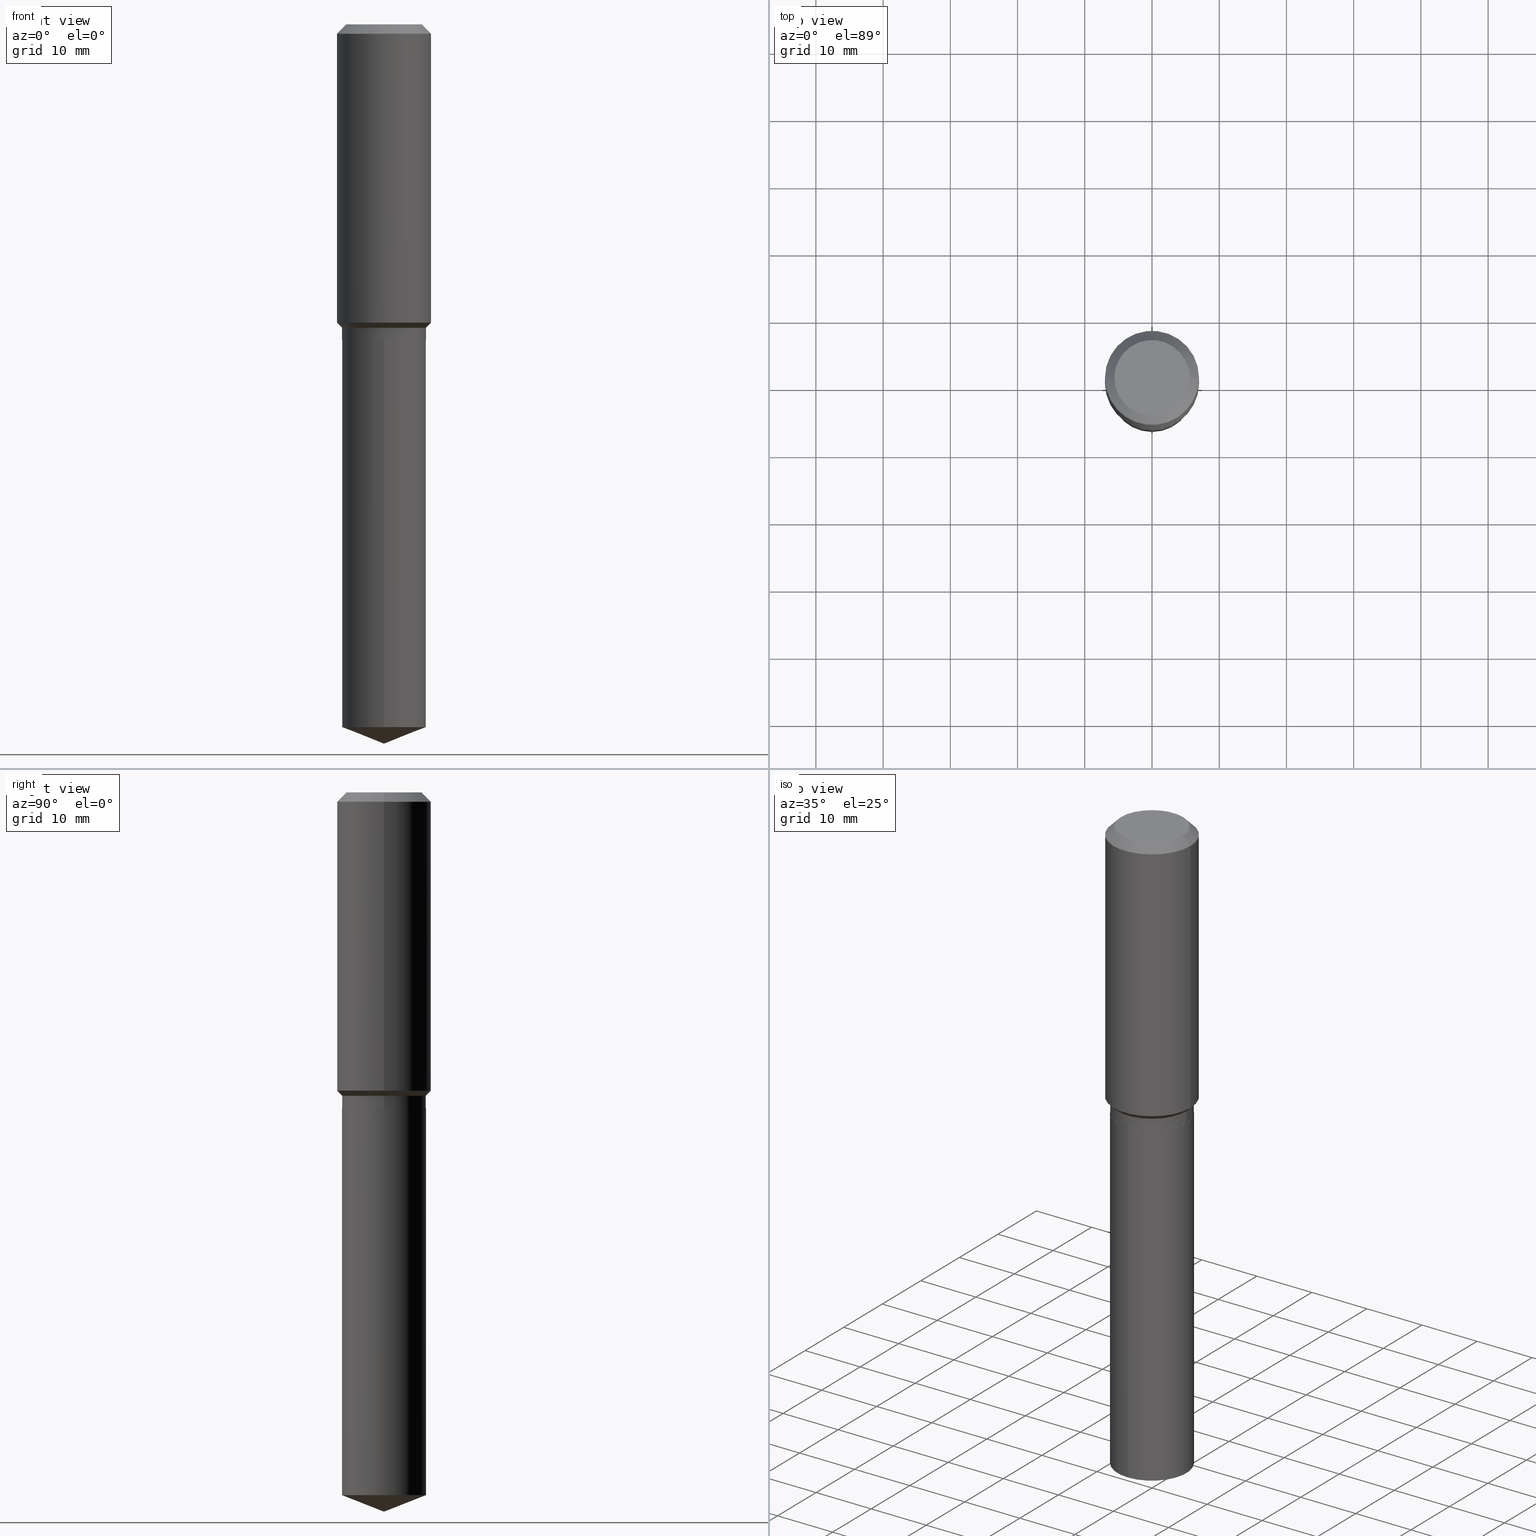
[diagram: canonical four-view strip — front | top / right | iso, engineering-drawing reading convention]
A machine part, canonical four-view strip (front | top / right | iso — engineering-drawing reading convention). The complete STEP part file that produces these views, byte-faithful:
ISO-10303-21;
HEADER;
FILE_DESCRIPTION (( 'STEP AP203' ),
    '1' );
FILE_NAME ('66491.STEP',
    '2024-04-24T23:40:13',
    ( '' ),
    ( '' ),
    'SwSTEP 2.0',
    'SolidWorks 2023',
    '' );
FILE_SCHEMA (( 'CONFIG_CONTROL_DESIGN' ));
ENDSEC;

DATA;
#1 = COORDINATED_UNIVERSAL_TIME_OFFSET ( 5, 0, .BEHIND. ) ;
#2 = DIRECTION ( 'NONE',  ( -2.445468806185136597E-29, 3.491481338843145583E-15, 1.000000000000000000 ) ) ;
#3 = APPROVAL ( #296, 'UNSPECIFIED' ) ;
#4 = ORIENTED_EDGE ( 'NONE', *, *, #477, .F. ) ;
#5 = CARTESIAN_POINT ( 'NONE',  ( -0.2204800000000000093, 1.635828836874783961E-15, 3.860086710901350968E-18 ) ) ;
#6 = DIRECTION ( 'NONE',  ( 1.000000000000000000, -6.982962677686266711E-15, 4.876132675269083677E-29 ) ) ;
#7 = VECTOR ( 'NONE', #158, 39.37007874015748143 ) ;
#8 = AXIS2_PLACEMENT_3D ( 'NONE', #70, #365, #288 ) ;
#9 = CYLINDRICAL_SURFACE ( 'NONE', #278, 0.2460499999999999354 ) ;
#10 = EDGE_CURVE ( 'NONE', #259, #488, #155, .T. ) ;
#11 = DIRECTION ( 'NONE',  ( 2.445468806185136597E-29, -3.491481338843145583E-15, -1.000000000000000000 ) ) ;
#12 = PLANE ( 'NONE',  #127 ) ;
#13 = EDGE_LOOP ( 'NONE', ( #468, #26, #247, #251 ) ) ;
#14 = CONICAL_SURFACE ( 'NONE', #431, 99.94676754583886691, 1.195550537616115738 ) ;
#15 = CARTESIAN_POINT ( 'NONE',  ( 0.2756000000000001227, -1.924504513970336137E-15, 1.343874319409360548E-29 ) ) ;
#16 = AXIS2_PLACEMENT_3D ( 'NONE', #27, #25, #323 ) ;
#17 = AXIS2_PLACEMENT_3D ( 'NONE', #133, #281, #439 ) ;
#18 = LOCAL_TIME ( 19, 40, 13.00000000000000000, #114 ) ;
#19 = DIRECTION ( 'NONE',  ( -2.445468806185136597E-29, 3.491481338843145583E-15, 1.000000000000000000 ) ) ;
#20 = DIRECTION ( 'NONE',  ( -2.445468806185136597E-29, 3.491481338843145583E-15, 1.000000000000000000 ) ) ;
#21 = EDGE_CURVE ( 'NONE', #286, #69, #38, .T. ) ;
#22 = DIRECTION ( 'NONE',  ( 1.000000000000000000, -6.982962677686269077E-15, 0.000000000000000000 ) ) ;
#23 = ORIENTED_EDGE ( 'NONE', *, *, #297, .F. ) ;
#24 = AXIS2_PLACEMENT_3D ( 'NONE', #128, #358, #319 ) ;
#25 = DIRECTION ( 'NONE',  ( -2.445468806185136597E-29, 3.491481338843145583E-15, 1.000000000000000000 ) ) ;
#26 = ORIENTED_EDGE ( 'NONE', *, *, #317, .T. ) ;
#27 = CARTESIAN_POINT ( 'NONE',  ( 4.523872744561886834E-29, -6.458891328725938439E-15, -1.849900000000000988 ) ) ;
#28 = ORIENTED_EDGE ( 'NONE', *, *, #83, .T. ) ;
#29 = CARTESIAN_POINT ( 'NONE',  ( 4.525095478964979075E-29, -6.460637069395360731E-15, -1.850400000000001155 ) ) ;
#30 = ORIENTED_EDGE ( 'NONE', *, *, #75, .T. ) ;
#31 = ADVANCED_FACE ( 'NONE', ( #188 ), #337, .T. ) ;
#32 = DIRECTION ( 'NONE',  ( -2.445468806185136597E-29, 3.491481338843145583E-15, 1.000000000000000000 ) ) ;
#33 = ORIENTED_EDGE ( 'NONE', *, *, #472, .F. ) ;
#34 = APPROVAL_DATE_TIME ( #485, #271 ) ;
#35 = APPROVAL_ROLE ( '' ) ;
#36 = CARTESIAN_POINT ( 'NONE',  ( 1.030189482071347624E-28, -1.470805256900513277E-14, -4.212600000000000122 ) ) ;
#37 = MECHANICAL_CONTEXT ( 'NONE', #403, 'mechanical' ) ;
#38 = LINE ( 'NONE', #36, #345 ) ;
#39 = CIRCLE ( 'NONE', #311, 0.2460499999999999909 ) ;
#40 = CIRCLE ( 'NONE', #64, 0.2204800000000000093 ) ;
#41 = DIRECTION ( 'NONE',  ( -6.982962677686265922E-15, -1.000000000000000000, 3.498627837350042877E-15 ) ) ;
#42 = PERSON_AND_ORGANIZATION_ROLE ( 'creator' ) ;
#43 = CARTESIAN_POINT ( 'NONE',  ( 0.2756000000000000116, -2.083203699582869812E-15, -0.05512000000000035621 ) ) ;
#44 = CARTESIAN_POINT ( 'NONE',  ( 3.087548876169571807E-29, -8.519285624669787196E-15, -1.850400000000001155 ) ) ;
#45 = ADVANCED_FACE ( 'NONE', ( #377 ), #14, .T. ) ;
#46 = CIRCLE ( 'NONE', #17, 0.2756000000000001782 ) ;
#47 = LINE ( 'NONE', #163, #484 ) ;
#48 = APPROVAL_PERSON_ORGANIZATION ( #375, #271, #405 ) ;
#49 = EDGE_LOOP ( 'NONE', ( #394, #303 ) ) ;
#50 = CARTESIAN_POINT ( 'NONE',  ( 4.344619881068514536E-29, -6.202965746588733394E-15, -1.776600000000000401 ) ) ;
#51 = ORIENTED_EDGE ( 'NONE', *, *, #84, .F. ) ;
#52 = LINE ( 'NONE', #469, #54 ) ;
#53 = VERTEX_POINT ( 'NONE', #265 ) ;
#54 = VECTOR ( 'NONE', #347, 39.37007874015748143 ) ;
#55 = LINE ( 'NONE', #15, #262 ) ;
#56 = AXIS2_PLACEMENT_3D ( 'NONE', #139, #32, #398 ) ;
#57 = CC_DESIGN_APPROVAL ( #3, ( #216 ) ) ;
#58 = CC_DESIGN_PERSON_AND_ORGANIZATION_ASSIGNMENT ( #222, #451, ( #238 ) ) ;
#59 = CARTESIAN_POINT ( 'NONE',  ( -0.2460499999999999354, 1.748290401337726049E-15, -1.210303978957219254E-29 ) ) ;
#60 = LINE ( 'NONE', #177, #225 ) ;
#61 = ORIENTED_EDGE ( 'NONE', *, *, #292, .F. ) ;
#62 = CARTESIAN_POINT ( 'NONE',  ( 1.347942405969256063E-30, -1.924504513970354330E-16, -0.05512000000000035621 ) ) ;
#63 = ORIENTED_EDGE ( 'NONE', *, *, #184, .T. ) ;
#64 = AXIS2_PLACEMENT_3D ( 'NONE', #102, #411, #136 ) ;
#65 = CARTESIAN_POINT ( 'NONE',  ( 0.2756000000000001782, -8.024296986996253937E-15, -1.747050000000000214 ) ) ;
#66 = VERTEX_POINT ( 'NONE', #5 ) ;
#67 = ADVANCED_FACE ( 'NONE', ( #227 ), #344, .F. ) ;
#68 = DIRECTION ( 'NONE',  ( -2.445468806185136597E-29, 3.491481338843145583E-15, 1.000000000000000000 ) ) ;
#69 = VERTEX_POINT ( 'NONE', #387 ) ;
#70 = CARTESIAN_POINT ( 'NONE',  ( 4.525095478964977954E-29, -6.460637069395358365E-15, -1.850400000000000489 ) ) ;
#71 = ORIENTED_EDGE ( 'NONE', *, *, #386, .T. ) ;
#72 = CONICAL_SURFACE ( 'NONE', #326, 0.2455499999999999905, 0.7853981633972092480 ) ;
#73 =( NAMED_UNIT ( * ) SI_UNIT ( $, .STERADIAN. ) SOLID_ANGLE_UNIT ( ) );
#74 = ORIENTED_EDGE ( 'NONE', *, *, #374, .T. ) ;
#75 = EDGE_CURVE ( 'NONE', #452, #171, #140, .T. ) ;
#76 = DATE_AND_TIME ( #226, #354 ) ;
#77 = DIRECTION ( 'NONE',  ( 0.7071067811863784858, -2.468850131080486462E-15, 0.7071067811867165487 ) ) ;
#78 = LENGTH_MEASURE_WITH_UNIT ( LENGTH_MEASURE( 0.02539999999999999897 ), #414 );
#79 = CARTESIAN_POINT ( 'NONE',  ( 4.272356277845743309E-29, -6.099792473025918194E-15, -1.747050000000000214 ) ) ;
#80 = AXIS2_PLACEMENT_3D ( 'NONE', #233, #392, #307 ) ;
#81 = APPROVAL_STATUS ( 'not_yet_approved' ) ;
#82 = DIRECTION ( 'NONE',  ( 1.000000000000000000, -6.982962677686265922E-15, 4.876176775795935793E-29 ) ) ;
#83 = EDGE_CURVE ( 'NONE', #69, #162, #298, .T. ) ;
#84 = EDGE_CURVE ( 'NONE', #66, #242, #202, .T. ) ;
#85 = DIRECTION ( 'NONE',  ( -2.445689454442209715E-29, 3.491165357980497875E-15, 1.000000000000000000 ) ) ;
#86 = CARTESIAN_POINT ( 'NONE',  ( -0.2455499999999999905, -4.713250154562323197E-15, -1.850400000000001155 ) ) ;
#87 = CARTESIAN_POINT ( 'NONE',  ( 4.344619881068514536E-29, -6.202965746588733394E-15, -1.776600000000000401 ) ) ;
#88 = DIRECTION ( 'NONE',  ( -0.7071067811865479058, 7.493145998870355738E-15, 0.7071067811865471286 ) ) ;
#89 = CARTESIAN_POINT ( 'NONE',  ( 4.525095478964979075E-29, -6.460637069395360731E-15, -1.850400000000001155 ) ) ;
#90 = PRODUCT_DEFINITION_SHAPE ( 'NONE', 'NONE',  #216 ) ;
#91 = DIRECTION ( 'NONE',  ( -2.445468806185136597E-29, 3.491481338843145583E-15, 1.000000000000000000 ) ) ;
#92 = CIRCLE ( 'NONE', #396, 0.2460499999999999909 ) ;
#93 = CARTESIAN_POINT ( 'NONE',  ( 4.523872744561886834E-29, -6.458891328725938439E-15, -1.849900000000000988 ) ) ;
#94 = EDGE_CURVE ( 'NONE', #162, #69, #39, .T. ) ;
#95 = VERTEX_POINT ( 'NONE', #421 ) ;
#96 = UNCERTAINTY_MEASURE_WITH_UNIT (LENGTH_MEASURE( 1.000000000000000082E-05 ), #110, 'distance_accuracy_value', 'NONE');
#97 = DIRECTION ( 'NONE',  ( 1.000000000000000000, -6.982962677686265133E-15, 0.000000000000000000 ) ) ;
#98 = VERTEX_POINT ( 'NONE', #415 ) ;
#99 = CARTESIAN_POINT ( 'NONE',  ( 4.525095478964978515E-29, -6.460637069395359943E-15, -1.850400000000000933 ) ) ;
#100 = ORIENTED_EDGE ( 'NONE', *, *, #384, .T. ) ;
#101 = COORDINATED_UNIVERSAL_TIME_OFFSET ( 5, 0, .BEHIND. ) ;
#102 = CARTESIAN_POINT ( 'NONE',  ( -9.439721640706190018E-47, 1.347742071746724849E-32, 3.860086710912454339E-18 ) ) ;
#103 = ORIENTED_EDGE ( 'NONE', *, *, #402, .F. ) ;
#104 = CARTESIAN_POINT ( 'NONE',  ( 0.2460499999999999354, -1.718157966844705344E-15, 1.199783295684589643E-29 ) ) ;
#105 = VERTEX_POINT ( 'NONE', #299 ) ;
#106 = ADVANCED_FACE ( 'NONE', ( #153 ), #253, .T. ) ;
#107 = CARTESIAN_POINT ( 'NONE',  ( 1.748290401337827023E-15, 0.2460499999999856136, -4.115678327474944886 ) ) ;
#108 = CLOSED_SHELL ( 'NONE', ( #280, #470, #448, #462, #31, #159, #228, #266, #284, #67, #138, #332 ) ) ;
#109 = AXIS2_PLACEMENT_3D ( 'NONE', #50, #19, #161 ) ;
#110 =( CONVERSION_BASED_UNIT ( 'INCH', #78 ) LENGTH_UNIT ( ) NAMED_UNIT ( #240 ) );
#111 = FACE_OUTER_BOUND ( 'NONE', #434, .T. ) ;
#112 = CARTESIAN_POINT ( 'NONE',  ( 0.000000000000000000, 0.000000000000000000, 0.000000000000000000 ) ) ;
#113 = CARTESIAN_POINT ( 'NONE',  ( 1.006526279584693269E-28, -1.436909829245988232E-14, -4.115678327474943998 ) ) ;
#114 = COORDINATED_UNIVERSAL_TIME_OFFSET ( 5, 0, .BEHIND. ) ;
#115 = DIRECTION ( 'NONE',  ( -6.982962677686265922E-15, -1.000000000000000000, 4.441126589984577246E-15 ) ) ;
#116 = CLOSED_SHELL ( 'NONE', ( #289, #45, #106, #364, #186 ) ) ;
#117 = VECTOR ( 'NONE', #348, 39.37007874015748143 ) ;
#118 = DIRECTION ( 'NONE',  ( -6.497071151882111159E-15, -0.9304175679820232414, 0.3665012267243005772 ) ) ;
#119 = CARTESIAN_POINT ( 'NONE',  ( 0.2756000000000000116, -2.116954965367370658E-15, -0.05512000000000035621 ) ) ;
#120 = CYLINDRICAL_SURFACE ( 'NONE', #287, 0.2460499999999999909 ) ;
#121 = VECTOR ( 'NONE', #206, 39.37007874015748143 ) ;
#122 = CARTESIAN_POINT ( 'NONE',  ( 1.030271139578325238E-28, -1.470688318702864405E-14, -4.212600000000000122 ) ) ;
#123 = MANIFOLD_SOLID_BREP ( 'Body-Move/Copy2[2]', #108 ) ;
#124 = CARTESIAN_POINT ( 'NONE',  ( 0.2204800000000000093, -1.797903149065768707E-15, 3.860086710924123164E-18 ) ) ;
#125 = ORIENTED_EDGE ( 'NONE', *, *, #472, .T. ) ;
#126 = FACE_OUTER_BOUND ( 'NONE', #49, .T. ) ;
#127 = AXIS2_PLACEMENT_3D ( 'NONE', #393, #312, #424 ) ;
#128 = CARTESIAN_POINT ( 'NONE',  ( 1.347942405969256063E-30, -1.924504513970354330E-16, -0.05512000000000035621 ) ) ;
#129 = CIRCLE ( 'NONE', #231, 0.2455499999999999905 ) ;
#130 = EDGE_LOOP ( 'NONE', ( #310, #366, #283 ) ) ;
#131 = CC_DESIGN_SECURITY_CLASSIFICATION ( #264, ( #238 ) ) ;
#132 = EDGE_CURVE ( 'NONE', #242, #322, #455, .T. ) ;
#133 = CARTESIAN_POINT ( 'NONE',  ( 4.272356277845743309E-29, -6.099792473025918194E-15, -1.747050000000000214 ) ) ;
#134 = ORIENTED_EDGE ( 'NONE', *, *, #276, .F. ) ;
#135 = CC_DESIGN_DATE_AND_TIME_ASSIGNMENT ( #400, #450, ( #264 ) ) ;
#136 = DIRECTION ( 'NONE',  ( 1.000000000000000000, -6.982962677686266711E-15, 4.876132675269083677E-29 ) ) ;
#137 = ORIENTED_EDGE ( 'NONE', *, *, #317, .F. ) ;
#138 = ADVANCED_FACE ( 'NONE', ( #156 ), #229, .F. ) ;
#139 = CARTESIAN_POINT ( 'NONE',  ( 0.000000000000000000, 0.000000000000000000, 0.000000000000000000 ) ) ;
#140 = CIRCLE ( 'NONE', #336, 0.2756000000000001782 ) ;
#141 = ORIENTED_EDGE ( 'NONE', *, *, #465, .F. ) ;
#142 = CIRCLE ( 'NONE', #381, 0.2756000000000000116 ) ;
#143 = DIRECTION ( 'NONE',  ( -2.445468806185136597E-29, 3.491481338843145583E-15, 1.000000000000000000 ) ) ;
#144 = ORIENTED_EDGE ( 'NONE', *, *, #343, .F. ) ;
#145 = APPROVAL ( #81, 'UNSPECIFIED' ) ;
#146 = COORDINATED_UNIVERSAL_TIME_OFFSET ( 5, 0, .BEHIND. ) ;
#147 = PERSON_AND_ORGANIZATION ( #349, #246 ) ;
#148 = ORIENTED_EDGE ( 'NONE', *, *, #21, .F. ) ;
#149 = DIRECTION ( 'NONE',  ( 1.000000000000000000, -6.982962677686265922E-15, 0.000000000000000000 ) ) ;
#150 = AXIS2_PLACEMENT_3D ( 'NONE', #224, #2, #6 ) ;
#151 =( GEOMETRIC_REPRESENTATION_CONTEXT ( 3 ) GLOBAL_UNCERTAINTY_ASSIGNED_CONTEXT ( ( #96 ) ) GLOBAL_UNIT_ASSIGNED_CONTEXT ( ( #110, #300, #73 ) ) REPRESENTATION_CONTEXT ( 'NONE', 'WORKASPACE' ) );
#152 = PERSON_AND_ORGANIZATION_ROLE ( 'design_owner' ) ;
#153 = FACE_OUTER_BOUND ( 'NONE', #130, .T. ) ;
#154 = PERSON_AND_ORGANIZATION ( #349, #246 ) ;
#155 = LINE ( 'NONE', #340, #453 ) ;
#156 = FACE_OUTER_BOUND ( 'NONE', #294, .T. ) ;
#157 = VECTOR ( 'NONE', #480, 39.37007874015748143 ) ;
#158 = DIRECTION ( 'NONE',  ( 0.7071067811865453523, -7.319954787623248157E-15, -0.7071067811865496822 ) ) ;
#159 = ADVANCED_FACE ( 'NONE', ( #111 ), #9, .T. ) ;
#160 = DIRECTION ( 'NONE',  ( -6.982962677686265922E-15, -1.000000000000000000, 3.330844942488433132E-15 ) ) ;
#161 = DIRECTION ( 'NONE',  ( 1.000000000000000000, -6.982962677686265133E-15, 0.000000000000000000 ) ) ;
#162 = VERTEX_POINT ( 'NONE', #107 ) ;
#163 = CARTESIAN_POINT ( 'NONE',  ( -0.2460499999999999354, -4.454675345251007740E-15, -1.776600000000000401 ) ) ;
#164 = ORIENTED_EDGE ( 'NONE', *, *, #173, .F. ) ;
#165 = EDGE_CURVE ( 'NONE', #98, #171, #47, .T. ) ;
#166 = FACE_OUTER_BOUND ( 'NONE', #175, .T. ) ;
#167 = APPLICATION_CONTEXT ( 'configuration controlled 3d designs of mechanical parts and assemblies' ) ;
#168 = DIRECTION ( 'NONE',  ( 1.000000000000000000, -6.982962677686269077E-15, 0.000000000000000000 ) ) ;
#169 = FACE_OUTER_BOUND ( 'NONE', #373, .T. ) ;
#170 = CONICAL_SURFACE ( 'NONE', #24, 0.2756000000000000116, 0.7853981633974452814 ) ;
#171 = VERTEX_POINT ( 'NONE', #397 ) ;
#172 = CC_DESIGN_PERSON_AND_ORGANIZATION_ASSIGNMENT ( #385, #42, ( #238 ) ) ;
#173 = EDGE_CURVE ( 'NONE', #452, #322, #55, .T. ) ;
#174 = DIRECTION ( 'NONE',  ( 1.000000000000000000, -6.982962677686269077E-15, 0.000000000000000000 ) ) ;
#175 = EDGE_LOOP ( 'NONE', ( #390, #408, #63, #33 ) ) ;
#176 = APPROVAL_STATUS ( 'not_yet_approved' ) ;
#177 = CARTESIAN_POINT ( 'NONE',  ( -1.718157966844660576E-15, -0.2460500000000064580, -1.850399999999999823 ) ) ;
#178 = ORIENTED_EDGE ( 'NONE', *, *, #10, .F. ) ;
#179 = CARTESIAN_POINT ( 'NONE',  ( -0.2756000000000001227, 1.958255779754836984E-15, -1.355658510874252567E-29 ) ) ;
#180 = ORIENTED_EDGE ( 'NONE', *, *, #384, .F. ) ;
#181 = CIRCLE ( 'NONE', #391, 0.2455499999999999905 ) ;
#182 = DESIGN_CONTEXT ( 'detailed design', #167, 'design' ) ;
#183 = APPROVAL_DATE_TIME ( #76, #145 ) ;
#184 = EDGE_CURVE ( 'NONE', #412, #452, #52, .T. ) ;
#185 = ORIENTED_EDGE ( 'NONE', *, *, #333, .T. ) ;
#186 = ADVANCED_FACE ( 'NONE', ( #126 ), #12, .F. ) ;
#187 = ORIENTED_EDGE ( 'NONE', *, *, #304, .F. ) ;
#188 = FACE_OUTER_BOUND ( 'NONE', #445, .T. ) ;
#189 = CONICAL_SURFACE ( 'NONE', #290, 0.2455499999999999905, 0.7853981633972092480 ) ;
#190 = APPROVAL_ROLE ( '' ) ;
#191 = DIRECTION ( 'NONE',  ( -6.982962677686265922E-15, -1.000000000000000000, 3.498627837350042877E-15 ) ) ;
#192 = CALENDAR_DATE ( 2024, 24, 4 ) ;
#193 = CARTESIAN_POINT ( 'NONE',  ( 0.000000000000000000, 0.000000000000000000, 0.000000000000000000 ) ) ;
#194 = DIRECTION ( 'NONE',  ( 1.000000000000000000, -6.982962677686265922E-15, 4.876176775795935793E-29 ) ) ;
#195 = CIRCLE ( 'NONE', #318, 0.2460499999999999909 ) ;
#196 = CIRCLE ( 'NONE', #16, 0.2460499999999999354 ) ;
#197 = DIRECTION ( 'NONE',  ( -6.982962677686265922E-15, -1.000000000000000000, 3.330844942488433132E-15 ) ) ;
#198 = CARTESIAN_POINT ( 'NONE',  ( 1.347942405969256063E-30, -1.924504513970354330E-16, -0.05512000000000035621 ) ) ;
#199 = EDGE_LOOP ( 'NONE', ( #331, #481, #215, #141 ) ) ;
#200 = FACE_OUTER_BOUND ( 'NONE', #207, .T. ) ;
#201 = ORIENTED_EDGE ( 'NONE', *, *, #422, .T. ) ;
#202 = CIRCLE ( 'NONE', #150, 0.2204800000000000093 ) ;
#203 = CIRCLE ( 'NONE', #109, 0.2460499999999999354 ) ;
#204 = DIRECTION ( 'NONE',  ( -2.445689454442209715E-29, 3.491165357980497875E-15, 1.000000000000000000 ) ) ;
#205 = CARTESIAN_POINT ( 'NONE',  ( 0.2455499999999999905, -8.175303554901223857E-15, -1.850400000000001155 ) ) ;
#206 = DIRECTION ( 'NONE',  ( -0.7071067811865453523, 2.468850131082234184E-15, -0.7071067811865496822 ) ) ;
#207 = EDGE_LOOP ( 'NONE', ( #404, #51, #273, #71 ) ) ;
#208 = SHAPE_DEFINITION_REPRESENTATION ( #90, #440 ) ;
#209 = CARTESIAN_POINT ( 'NONE',  ( 4.344619881068514536E-29, -6.202965746588733394E-15, -1.776600000000000401 ) ) ;
#210 = AXIS2_PLACEMENT_3D ( 'NONE', #112, #379, #252 ) ;
#211 = VERTEX_POINT ( 'NONE', #86 ) ;
#212 = CARTESIAN_POINT ( 'NONE',  ( 0.2460499999999999354, -8.177049295570642994E-15, -1.849900000000000988 ) ) ;
#213 = EDGE_LOOP ( 'NONE', ( #148, #436, #388 ) ) ;
#214 = CYLINDRICAL_SURFACE ( 'NONE', #56, 0.2756000000000001227 ) ;
#215 = ORIENTED_EDGE ( 'NONE', *, *, #276, .T. ) ;
#216 = PRODUCT_DEFINITION ( 'UNKNOWN', '', #238, #182 ) ;
#217 = LINE ( 'NONE', #372, #346 ) ;
#218 = ORIENTED_EDGE ( 'NONE', *, *, #343, .T. ) ;
#219 = CIRCLE ( 'NONE', #459, 0.2756000000000000116 ) ;
#220 = SECURITY_CLASSIFICATION_LEVEL ( 'unclassified' ) ;
#221 = CARTESIAN_POINT ( 'NONE',  ( -8.598468328711422181E-28, 1.227399871605853965E-13, 35.15747874015747954 ) ) ;
#222 = PERSON_AND_ORGANIZATION ( #349, #246 ) ;
#223 = DIRECTION ( 'NONE',  ( -2.445689454442209715E-29, 3.491165357980497875E-15, 1.000000000000000000 ) ) ;
#224 = CARTESIAN_POINT ( 'NONE',  ( -9.439721640706190018E-47, 1.347742071746724849E-32, 3.860086710912454339E-18 ) ) ;
#225 = VECTOR ( 'NONE', #241, 39.37007874015748143 ) ;
#226 = CALENDAR_DATE ( 2024, 24, 4 ) ;
#227 = FACE_OUTER_BOUND ( 'NONE', #324, .T. ) ;
#228 = ADVANCED_FACE ( 'NONE', ( #166 ), #279, .T. ) ;
#229 = PLANE ( 'NONE',  #442 ) ;
#230 = LINE ( 'NONE', #466, #371 ) ;
#231 = AXIS2_PLACEMENT_3D ( 'NONE', #235, #350, #168 ) ;
#232 = APPROVAL_PERSON_ORGANIZATION ( #154, #3, #190 ) ;
#233 = CARTESIAN_POINT ( 'NONE',  ( 4.344619881068514536E-29, -6.202965746588733394E-15, -1.776600000000000401 ) ) ;
#234 = VERTEX_POINT ( 'NONE', #313 ) ;
#235 = CARTESIAN_POINT ( 'NONE',  ( 4.525095478964979075E-29, -6.460637069395360731E-15, -1.850400000000001155 ) ) ;
#236 = CARTESIAN_POINT ( 'NONE',  ( 1.347942405969256063E-30, -1.924504513970354330E-16, -0.05512000000000035621 ) ) ;
#237 = CONICAL_SURFACE ( 'NONE', #361, 0.2460499999999999354, 0.7853981633974488341 ) ;
#238 = PRODUCT_DEFINITION_FORMATION_WITH_SPECIFIED_SOURCE ( 'ANY', '', #316, .NOT_KNOWN. ) ;
#239 = DIRECTION ( 'NONE',  ( 1.000000000000000000, -6.982962677686265133E-15, 0.000000000000000000 ) ) ;
#240 = DIMENSIONAL_EXPONENTS ( 1.000000000000000000, 0.000000000000000000, 0.000000000000000000, 0.000000000000000000, 0.000000000000000000, 0.000000000000000000, 0.000000000000000000 ) ;
#241 = DIRECTION ( 'NONE',  ( -2.445689454442209715E-29, 3.491165357980497875E-15, 1.000000000000000000 ) ) ;
#242 = VERTEX_POINT ( 'NONE', #124 ) ;
#243 = CARTESIAN_POINT ( 'NONE',  ( 0.2460499999999999354, -7.921123713433438738E-15, -1.776600000000000401 ) ) ;
#244 = ORIENTED_EDGE ( 'NONE', *, *, #94, .T. ) ;
#245 = DIRECTION ( 'NONE',  ( -2.445468806185136597E-29, 3.491481338843145583E-15, 1.000000000000000000 ) ) ;
#246 = ORGANIZATION ( 'UNSPECIFIED', 'UNSPECIFIED', '' ) ;
#247 = ORIENTED_EDGE ( 'NONE', *, *, #10, .T. ) ;
#248 = DIRECTION ( 'NONE',  ( -2.445689454442209715E-29, 3.491165357980497875E-15, 1.000000000000000000 ) ) ;
#249 = ORIENTED_EDGE ( 'NONE', *, *, #75, .F. ) ;
#250 = LINE ( 'NONE', #446, #338 ) ;
#251 = ORIENTED_EDGE ( 'NONE', *, *, #333, .F. ) ;
#252 = DIRECTION ( 'NONE',  ( 1.000000000000000000, 0.000000000000000000, 0.000000000000000000 ) ) ;
#253 = CONICAL_SURFACE ( 'NONE', #352, 99.94676754583886691, 1.195550537616115738 ) ;
#254 = DIRECTION ( 'NONE',  ( -6.982962677686265922E-15, -1.000000000000000000, 4.441126589984577246E-15 ) ) ;
#255 = CC_DESIGN_PERSON_AND_ORGANIZATION_ASSIGNMENT ( #330, #457, ( #216 ) ) ;
#256 = CARTESIAN_POINT ( 'NONE',  ( 0.000000000000000000, 0.000000000000000000, 0.000000000000000000 ) ) ;
#257 = EDGE_CURVE ( 'NONE', #95, #234, #195, .T. ) ;
#258 = COORDINATED_UNIVERSAL_TIME_OFFSET ( 5, 0, .BEHIND. ) ;
#259 = VERTEX_POINT ( 'NONE', #205 ) ;
#260 = DATE_AND_TIME ( #489, #18 ) ;
#261 = DIRECTION ( 'NONE',  ( -2.445689454442209715E-29, 3.491165357980497875E-15, 1.000000000000000000 ) ) ;
#262 = VECTOR ( 'NONE', #429, 39.37007874015748143 ) ;
#263 = VECTOR ( 'NONE', #487, 39.37007874015748143 ) ;
#264 = SECURITY_CLASSIFICATION ( '', '', #220 ) ;
#265 = CARTESIAN_POINT ( 'NONE',  ( -0.2756000000000000116, -1.187865682456639571E-15, -0.05512000000000035621 ) ) ;
#266 = ADVANCED_FACE ( 'NONE', ( #272 ), #268, .T. ) ;
#267 = DIRECTION ( 'NONE',  ( 1.000000000000000000, -6.982962677686267499E-15, 4.876176775795935793E-29 ) ) ;
#268 = CYLINDRICAL_SURFACE ( 'NONE', #353, 0.2756000000000001227 ) ;
#269 = AXIS2_PLACEMENT_3D ( 'NONE', #236, #11, #430 ) ;
#270 = LOCAL_TIME ( 19, 40, 13.00000000000000000, #258 ) ;
#271 = APPROVAL ( #176, 'UNSPECIFIED' ) ;
#272 = FACE_OUTER_BOUND ( 'NONE', #295, .T. ) ;
#273 = ORIENTED_EDGE ( 'NONE', *, *, #465, .T. ) ;
#274 = CARTESIAN_POINT ( 'NONE',  ( 4.525095478964978515E-29, -6.460637069395359943E-15, -1.850400000000000933 ) ) ;
#275 = ORIENTED_EDGE ( 'NONE', *, *, #386, .F. ) ;
#276 = EDGE_CURVE ( 'NONE', #322, #53, #142, .T. ) ;
#277 = DIRECTION ( 'NONE',  ( -2.445468806185136597E-29, 3.491481338843145583E-15, 1.000000000000000000 ) ) ;
#278 = AXIS2_PLACEMENT_3D ( 'NONE', #256, #416, #306 ) ;
#279 = CONICAL_SURFACE ( 'NONE', #80, 0.2460499999999999354, 0.7853981633974488341 ) ;
#280 = ADVANCED_FACE ( 'NONE', ( #464 ), #72, .T. ) ;
#281 = DIRECTION ( 'NONE',  ( -2.445468806185136597E-29, 3.491481338843145583E-15, 1.000000000000000000 ) ) ;
#282 = FACE_OUTER_BOUND ( 'NONE', #13, .T. ) ;
#283 = ORIENTED_EDGE ( 'NONE', *, *, #94, .F. ) ;
#284 = ADVANCED_FACE ( 'NONE', ( #200 ), #454, .T. ) ;
#285 = FACE_OUTER_BOUND ( 'NONE', #199, .T. ) ;
#286 = VERTEX_POINT ( 'NONE', #122 ) ;
#287 = AXIS2_PLACEMENT_3D ( 'NONE', #395, #463, #197 ) ;
#288 = DIRECTION ( 'NONE',  ( -6.982962677686265922E-15, -1.000000000000000000, 3.330844942488433132E-15 ) ) ;
#289 = ADVANCED_FACE ( 'NONE', ( #309 ), #120, .T. ) ;
#290 = AXIS2_PLACEMENT_3D ( 'NONE', #29, #143, #174 ) ;
#291 = ORIENTED_EDGE ( 'NONE', *, *, #165, .T. ) ;
#292 = EDGE_CURVE ( 'NONE', #412, #98, #406, .T. ) ;
#293 = DIRECTION ( 'NONE',  ( 1.000000000000000000, -6.982962677686265922E-15, 0.000000000000000000 ) ) ;
#294 = EDGE_LOOP ( 'NONE', ( #479, #137 ) ) ;
#295 = EDGE_LOOP ( 'NONE', ( #180, #125, #447, #275 ) ) ;
#296 = APPROVAL_STATUS ( 'not_yet_approved' ) ;
#297 = EDGE_CURVE ( 'NONE', #105, #98, #356, .T. ) ;
#298 = CIRCLE ( 'NONE', #360, 0.2460499999999999909 ) ;
#299 = CARTESIAN_POINT ( 'NONE',  ( -0.2460499999999999354, -4.582638136319609868E-15, -1.849900000000000988 ) ) ;
#300 =( NAMED_UNIT ( * ) PLANE_ANGLE_UNIT ( ) SI_UNIT ( $, .RADIAN. ) );
#301 = DIRECTION ( 'NONE',  ( -1.000000000000000000, 6.982962677686265922E-15, -4.876176775795935793E-29 ) ) ;
#302 = DIRECTION ( 'NONE',  ( 2.438088387897960049E-29, -3.491481338843145188E-15, -1.000000000000000000 ) ) ;
#303 = ORIENTED_EDGE ( 'NONE', *, *, #477, .T. ) ;
#304 = EDGE_CURVE ( 'NONE', #98, #412, #203, .T. ) ;
#305 = EDGE_CURVE ( 'NONE', #211, #105, #230, .T. ) ;
#306 = DIRECTION ( 'NONE',  ( 1.000000000000000000, -6.982962677686265922E-15, 4.876176775795935793E-29 ) ) ;
#307 = DIRECTION ( 'NONE',  ( 1.000000000000000000, -6.982962677686265133E-15, 0.000000000000000000 ) ) ;
#308 = PRODUCT_RELATED_PRODUCT_CATEGORY ( 'detail', '', ( #316 ) ) ;
#309 = FACE_OUTER_BOUND ( 'NONE', #441, .T. ) ;
#310 = ORIENTED_EDGE ( 'NONE', *, *, #419, .F. ) ;
#311 = AXIS2_PLACEMENT_3D ( 'NONE', #113, #261, #254 ) ;
#312 = DIRECTION ( 'NONE',  ( 2.445689454442209435E-29, -3.491165357980497875E-15, -1.000000000000000000 ) ) ;
#313 = CARTESIAN_POINT ( 'NONE',  ( 1.748290401337827417E-15, 0.2460499999999935794, -1.850400000000001599 ) ) ;
#314 = CC_DESIGN_DATE_AND_TIME_ASSIGNMENT ( #260, #420, ( #216 ) ) ;
#315 = FACE_OUTER_BOUND ( 'NONE', #456, .T. ) ;
#316 = PRODUCT ( '66491', '66491', '', ( #37 ) ) ;
#317 = EDGE_CURVE ( 'NONE', #211, #259, #129, .T. ) ;
#318 = AXIS2_PLACEMENT_3D ( 'NONE', #274, #204, #160 ) ;
#319 = DIRECTION ( 'NONE',  ( -1.000000000000000000, 6.982962677686269077E-15, 0.000000000000000000 ) ) ;
#320 = ORIENTED_EDGE ( 'NONE', *, *, #297, .T. ) ;
#321 = LINE ( 'NONE', #179, #263 ) ;
#322 = VERTEX_POINT ( 'NONE', #119 ) ;
#323 = DIRECTION ( 'NONE',  ( 1.000000000000000000, -6.982962677686265133E-15, 0.000000000000000000 ) ) ;
#324 = EDGE_LOOP ( 'NONE', ( #359, #328 ) ) ;
#325 = PERSON_AND_ORGANIZATION ( #349, #246 ) ;
#326 = AXIS2_PLACEMENT_3D ( 'NONE', #89, #389, #426 ) ;
#327 = DIRECTION ( 'NONE',  ( -2.445468806185136597E-29, 3.491481338843145583E-15, 1.000000000000000000 ) ) ;
#328 = ORIENTED_EDGE ( 'NONE', *, *, #425, .T. ) ;
#329 = CALENDAR_DATE ( 2024, 24, 4 ) ;
#330 = PERSON_AND_ORGANIZATION ( #349, #246 ) ;
#331 = ORIENTED_EDGE ( 'NONE', *, *, #425, .F. ) ;
#332 = ADVANCED_FACE ( 'NONE', ( #282 ), #189, .T. ) ;
#333 = EDGE_CURVE ( 'NONE', #105, #488, #486, .T. ) ;
#334 = CARTESIAN_POINT ( 'NONE',  ( 1.006526279584693269E-28, -1.436909829245988232E-14, -4.115678327474943998 ) ) ;
#335 = APPLICATION_PROTOCOL_DEFINITION ( 'international standard', 'config_control_design', 1994, #403 ) ;
#336 = AXIS2_PLACEMENT_3D ( 'NONE', #79, #342, #149 ) ;
#337 = CYLINDRICAL_SURFACE ( 'NONE', #443, 0.2460499999999999354 ) ;
#338 = VECTOR ( 'NONE', #401, 39.37007874015748854 ) ;
#339 = APPLICATION_PROTOCOL_DEFINITION ( 'international standard', 'config_control_design', 1994, #167 ) ;
#340 = CARTESIAN_POINT ( 'NONE',  ( 0.2455499999999999905, -8.175303554901223857E-15, -1.850400000000001155 ) ) ;
#341 = PERSON_AND_ORGANIZATION ( #349, #246 ) ;
#342 = DIRECTION ( 'NONE',  ( -2.445468806185136597E-29, 3.491481338843145583E-15, 1.000000000000000000 ) ) ;
#343 = EDGE_CURVE ( 'NONE', #69, #95, #60, .T. ) ;
#344 = PLANE ( 'NONE',  #467 ) ;
#345 = VECTOR ( 'NONE', #118, 39.37007874015748143 ) ;
#346 = VECTOR ( 'NONE', #248, 39.37007874015748143 ) ;
#347 = DIRECTION ( 'NONE',  ( 0.7071067811865479058, -2.468850131082261005E-15, 0.7071067811865471286 ) ) ;
#348 = DIRECTION ( 'NONE',  ( -2.445468806185136877E-29, 3.491481338843145188E-15, 1.000000000000000000 ) ) ;
#349 = PERSON ( 'UNSPECIFIED', 'UNSPECIFIED', 'UNSPECIFIED', ('UNSPECIFIED'), ('UNSPECIFIED'), ('UNSPECIFIED') ) ;
#350 = DIRECTION ( 'NONE',  ( -2.445468806185136597E-29, 3.491481338843145583E-15, 1.000000000000000000 ) ) ;
#351 = ORIENTED_EDGE ( 'NONE', *, *, #184, .F. ) ;
#352 = AXIS2_PLACEMENT_3D ( 'NONE', #380, #85, #41 ) ;
#353 = AXIS2_PLACEMENT_3D ( 'NONE', #427, #20, #267 ) ;
#354 = LOCAL_TIME ( 19, 40, 13.00000000000000000, #1 ) ;
#355 = LOCAL_TIME ( 19, 40, 13.00000000000000000, #146 ) ;
#356 = LINE ( 'NONE', #59, #117 ) ;
#357 = DIRECTION ( 'NONE',  ( -0.7071067811863784858, 7.493145998869743582E-15, 0.7071067811867165487 ) ) ;
#358 = DIRECTION ( 'NONE',  ( 2.445468806185136597E-29, -3.491481338843145583E-15, -1.000000000000000000 ) ) ;
#359 = ORIENTED_EDGE ( 'NONE', *, *, #84, .T. ) ;
#360 = AXIS2_PLACEMENT_3D ( 'NONE', #334, #223, #115 ) ;
#361 = AXIS2_PLACEMENT_3D ( 'NONE', #209, #245, #362 ) ;
#362 = DIRECTION ( 'NONE',  ( 1.000000000000000000, -6.982962677686265133E-15, 0.000000000000000000 ) ) ;
#363 = ORIENTED_EDGE ( 'NONE', *, *, #437, .F. ) ;
#364 = ADVANCED_FACE ( 'NONE', ( #367 ), #478, .T. ) ;
#365 = DIRECTION ( 'NONE',  ( -2.445689454442209715E-29, 3.491165357980497875E-15, 1.000000000000000000 ) ) ;
#366 = ORIENTED_EDGE ( 'NONE', *, *, #21, .T. ) ;
#367 = FACE_OUTER_BOUND ( 'NONE', #490, .T. ) ;
#368 = ORIENTED_EDGE ( 'NONE', *, *, #292, .T. ) ;
#369 = PERSON_AND_ORGANIZATION_ROLE ( 'classification_officer' ) ;
#370 = CC_DESIGN_PERSON_AND_ORGANIZATION_ASSIGNMENT ( #147, #152, ( #316 ) ) ;
#371 = VECTOR ( 'NONE', #357, 39.37007874015748143 ) ;
#372 = CARTESIAN_POINT ( 'NONE',  ( 1.748290401337771408E-15, 0.2460499999999935516, -1.850400000000001377 ) ) ;
#373 = EDGE_LOOP ( 'NONE', ( #30, #100, #134, #164 ) ) ;
#374 = EDGE_CURVE ( 'NONE', #488, #105, #196, .T. ) ;
#375 = PERSON_AND_ORGANIZATION ( #349, #246 ) ;
#376 = DATE_AND_TIME ( #192, #270 ) ;
#377 = FACE_OUTER_BOUND ( 'NONE', #213, .T. ) ;
#378 = DIRECTION ( 'NONE',  ( -2.438088387897960049E-29, 3.491481338843145188E-15, 1.000000000000000000 ) ) ;
#379 = DIRECTION ( 'NONE',  ( 0.000000000000000000, 0.000000000000000000, 1.000000000000000000 ) ) ;
#380 = CARTESIAN_POINT ( 'NONE',  ( -8.598468328711422181E-28, 1.227399871605853965E-13, 35.15747874015747954 ) ) ;
#381 = AXIS2_PLACEMENT_3D ( 'NONE', #198, #277, #473 ) ;
#382 = CC_DESIGN_APPROVAL ( #271, ( #264 ) ) ;
#383 = CC_DESIGN_PERSON_AND_ORGANIZATION_ASSIGNMENT ( #325, #369, ( #264 ) ) ;
#384 = EDGE_CURVE ( 'NONE', #171, #53, #321, .T. ) ;
#385 = PERSON_AND_ORGANIZATION ( #349, #246 ) ;
#386 = EDGE_CURVE ( 'NONE', #53, #322, #219, .T. ) ;
#387 = CARTESIAN_POINT ( 'NONE',  ( -1.718157966844604764E-15, -0.2460500000000143406, -4.115678327474942222 ) ) ;
#388 = ORIENTED_EDGE ( 'NONE', *, *, #83, .F. ) ;
#389 = DIRECTION ( 'NONE',  ( -2.445468806185136597E-29, 3.491481338843145583E-15, 1.000000000000000000 ) ) ;
#390 = ORIENTED_EDGE ( 'NONE', *, *, #165, .F. ) ;
#391 = AXIS2_PLACEMENT_3D ( 'NONE', #482, #68, #22 ) ;
#392 = DIRECTION ( 'NONE',  ( -2.445468806185136597E-29, 3.491481338843145583E-15, 1.000000000000000000 ) ) ;
#393 = CARTESIAN_POINT ( 'NONE',  ( 3.090470125108395045E-29, -8.515102229922224085E-15, -1.850400000000000489 ) ) ;
#394 = ORIENTED_EDGE ( 'NONE', *, *, #257, .T. ) ;
#395 = CARTESIAN_POINT ( 'NONE',  ( 4.525095478964977954E-29, -6.460637069395358365E-15, -1.850400000000000489 ) ) ;
#396 = AXIS2_PLACEMENT_3D ( 'NONE', #99, #407, #433 ) ;
#397 = CARTESIAN_POINT ( 'NONE',  ( -0.2756000000000001782, -4.141536693271080027E-15, -1.747050000000000214 ) ) ;
#398 = DIRECTION ( 'NONE',  ( 1.000000000000000000, -6.982962677686267499E-15, 4.876176775795935793E-29 ) ) ;
#399 = ORIENTED_EDGE ( 'NONE', *, *, #305, .T. ) ;
#400 = DATE_AND_TIME ( #329, #355 ) ;
#401 = DIRECTION ( 'NONE',  ( 6.611014441532057123E-15, 0.9304175679820257949, 0.3665012267242939714 ) ) ;
#402 = EDGE_CURVE ( 'NONE', #488, #412, #444, .T. ) ;
#403 = APPLICATION_CONTEXT ( 'configuration controlled 3d designs of mechanical parts and assemblies' ) ;
#404 = ORIENTED_EDGE ( 'NONE', *, *, #132, .F. ) ;
#405 = APPROVAL_ROLE ( '' ) ;
#406 = CIRCLE ( 'NONE', #475, 0.2460499999999999354 ) ;
#407 = DIRECTION ( 'NONE',  ( -2.445689454442209715E-29, 3.491165357980497875E-15, 1.000000000000000000 ) ) ;
#408 = ORIENTED_EDGE ( 'NONE', *, *, #304, .T. ) ;
#409 = DIRECTION ( 'NONE',  ( -2.445468806185136597E-29, 3.491481338843145583E-15, 1.000000000000000000 ) ) ;
#410 = ORIENTED_EDGE ( 'NONE', *, *, #402, .T. ) ;
#411 = DIRECTION ( 'NONE',  ( -2.445468806185136597E-29, 3.491481338843145583E-15, 1.000000000000000000 ) ) ;
#412 = VERTEX_POINT ( 'NONE', #243 ) ;
#413 = AXIS2_PLACEMENT_3D ( 'NONE', #93, #327, #97 ) ;
#414 =( LENGTH_UNIT ( ) NAMED_UNIT ( * ) SI_UNIT ( $, .METRE. ) );
#415 = CARTESIAN_POINT ( 'NONE',  ( -0.2460499999999999354, -4.582638136319609868E-15, -1.776600000000000401 ) ) ;
#416 = DIRECTION ( 'NONE',  ( -2.445468806185136597E-29, 3.491481338843145583E-15, 1.000000000000000000 ) ) ;
#417 = APPROVAL_DATE_TIME ( #376, #3 ) ;
#418 = CARTESIAN_POINT ( 'NONE',  ( -4.719860820353095009E-47, 6.738710358733624243E-33, 1.930043355456227170E-18 ) ) ;
#419 = EDGE_CURVE ( 'NONE', #286, #162, #250, .T. ) ;
#420 = DATE_TIME_ROLE ( 'creation_date' ) ;
#421 = CARTESIAN_POINT ( 'NONE',  ( -1.718157966844660576E-15, -0.2460500000000064580, -1.850400000000000045 ) ) ;
#422 = EDGE_CURVE ( 'NONE', #259, #211, #181, .T. ) ;
#423 = ORIENTED_EDGE ( 'NONE', *, *, #437, .T. ) ;
#424 = DIRECTION ( 'NONE',  ( 6.982962677686265922E-15, 1.000000000000000000, -3.491165357980497875E-15 ) ) ;
#425 = EDGE_CURVE ( 'NONE', #242, #66, #40, .T. ) ;
#426 = DIRECTION ( 'NONE',  ( 1.000000000000000000, -6.982962677686269077E-15, 0.000000000000000000 ) ) ;
#427 = CARTESIAN_POINT ( 'NONE',  ( 0.000000000000000000, 0.000000000000000000, 0.000000000000000000 ) ) ;
#428 = ORIENTED_EDGE ( 'NONE', *, *, #257, .F. ) ;
#429 = DIRECTION ( 'NONE',  ( -2.445468806185136877E-29, 3.491481338843145188E-15, 1.000000000000000000 ) ) ;
#430 = DIRECTION ( 'NONE',  ( -1.000000000000000000, 6.982962677686269077E-15, 0.000000000000000000 ) ) ;
#431 = AXIS2_PLACEMENT_3D ( 'NONE', #221, #458, #191 ) ;
#432 = CC_DESIGN_APPROVAL ( #145, ( #238 ) ) ;
#433 = DIRECTION ( 'NONE',  ( -6.982962677686265922E-15, -1.000000000000000000, 3.330844942488433132E-15 ) ) ;
#434 = EDGE_LOOP ( 'NONE', ( #23, #185, #410, #187 ) ) ;
#435 = LINE ( 'NONE', #474, #121 ) ;
#436 = ORIENTED_EDGE ( 'NONE', *, *, #419, .T. ) ;
#437 = EDGE_CURVE ( 'NONE', #162, #234, #217, .T. ) ;
#438 = CALENDAR_DATE ( 2024, 24, 4 ) ;
#439 = DIRECTION ( 'NONE',  ( 1.000000000000000000, -6.982962677686265922E-15, 0.000000000000000000 ) ) ;
#440 = ADVANCED_BREP_SHAPE_REPRESENTATION ( '66491', ( #449, #123, #210 ), #151 ) ;
#441 = EDGE_LOOP ( 'NONE', ( #28, #423, #428, #144 ) ) ;
#442 = AXIS2_PLACEMENT_3D ( 'NONE', #44, #378, #194 ) ;
#443 = AXIS2_PLACEMENT_3D ( 'NONE', #193, #460, #82 ) ;
#444 = LINE ( 'NONE', #104, #157 ) ;
#445 = EDGE_LOOP ( 'NONE', ( #74, #320, #61, #103 ) ) ;
#446 = CARTESIAN_POINT ( 'NONE',  ( 1.030271855618272685E-28, -1.470688318702864405E-14, -4.212600000000000122 ) ) ;
#447 = ORIENTED_EDGE ( 'NONE', *, *, #173, .T. ) ;
#448 = ADVANCED_FACE ( 'NONE', ( #169 ), #214, .T. ) ;
#449 = MANIFOLD_SOLID_BREP ( 'Body-Move/Copy2[1]', #116 ) ;
#450 = DATE_TIME_ROLE ( 'classification_date' ) ;
#451 = PERSON_AND_ORGANIZATION_ROLE ( 'design_supplier' ) ;
#452 = VERTEX_POINT ( 'NONE', #65 ) ;
#453 = VECTOR ( 'NONE', #77, 39.37007874015748143 ) ;
#454 = CONICAL_SURFACE ( 'NONE', #269, 0.2756000000000000116, 0.7853981633974452814 ) ;
#455 = LINE ( 'NONE', #43, #7 ) ;
#456 = EDGE_LOOP ( 'NONE', ( #368, #291, #249, #351 ) ) ;
#457 = PERSON_AND_ORGANIZATION_ROLE ( 'creator' ) ;
#458 = DIRECTION ( 'NONE',  ( -2.445689454442209715E-29, 3.491165357980497875E-15, 1.000000000000000000 ) ) ;
#459 = AXIS2_PLACEMENT_3D ( 'NONE', #62, #409, #293 ) ;
#460 = DIRECTION ( 'NONE',  ( -2.445468806185136597E-29, 3.491481338843145583E-15, 1.000000000000000000 ) ) ;
#461 = LOCAL_TIME ( 19, 40, 13.00000000000000000, #101 ) ;
#462 = ADVANCED_FACE ( 'NONE', ( #315 ), #237, .T. ) ;
#463 = DIRECTION ( 'NONE',  ( -2.445689454442209715E-29, 3.491165357980497875E-15, 1.000000000000000000 ) ) ;
#464 = FACE_OUTER_BOUND ( 'NONE', #471, .T. ) ;
#465 = EDGE_CURVE ( 'NONE', #66, #53, #435, .T. ) ;
#466 = CARTESIAN_POINT ( 'NONE',  ( -0.2455499999999999905, -4.715899381736434398E-15, -1.850400000000001155 ) ) ;
#467 = AXIS2_PLACEMENT_3D ( 'NONE', #418, #302, #301 ) ;
#468 = ORIENTED_EDGE ( 'NONE', *, *, #305, .F. ) ;
#469 = CARTESIAN_POINT ( 'NONE',  ( 0.2460499999999999354, -7.921123713433438738E-15, -1.776600000000000401 ) ) ;
#470 = ADVANCED_FACE ( 'NONE', ( #285 ), #170, .T. ) ;
#471 = EDGE_LOOP ( 'NONE', ( #201, #399, #483, #178 ) ) ;
#472 = EDGE_CURVE ( 'NONE', #171, #452, #46, .T. ) ;
#473 = DIRECTION ( 'NONE',  ( 1.000000000000000000, -6.982962677686265922E-15, 0.000000000000000000 ) ) ;
#474 = CARTESIAN_POINT ( 'NONE',  ( -0.2756000000000000116, 1.732054062573300039E-15, -0.05512000000000035621 ) ) ;
#475 = AXIS2_PLACEMENT_3D ( 'NONE', #87, #91, #239 ) ;
#476 = APPROVAL_PERSON_ORGANIZATION ( #341, #145, #35 ) ;
#477 = EDGE_CURVE ( 'NONE', #234, #95, #92, .T. ) ;
#478 = CYLINDRICAL_SURFACE ( 'NONE', #8, 0.2460499999999999909 ) ;
#479 = ORIENTED_EDGE ( 'NONE', *, *, #422, .F. ) ;
#480 = DIRECTION ( 'NONE',  ( -2.445468806185136877E-29, 3.491481338843145188E-15, 1.000000000000000000 ) ) ;
#481 = ORIENTED_EDGE ( 'NONE', *, *, #132, .T. ) ;
#482 = CARTESIAN_POINT ( 'NONE',  ( 4.525095478964979075E-29, -6.460637069395360731E-15, -1.850400000000001155 ) ) ;
#483 = ORIENTED_EDGE ( 'NONE', *, *, #374, .F. ) ;
#484 = VECTOR ( 'NONE', #88, 39.37007874015748143 ) ;
#485 = DATE_AND_TIME ( #438, #461 ) ;
#486 = CIRCLE ( 'NONE', #413, 0.2460499999999999354 ) ;
#487 = DIRECTION ( 'NONE',  ( -2.445468806185136877E-29, 3.491481338843145188E-15, 1.000000000000000000 ) ) ;
#488 = VERTEX_POINT ( 'NONE', #212 ) ;
#489 = CALENDAR_DATE ( 2024, 24, 4 ) ;
#490 = EDGE_LOOP ( 'NONE', ( #363, #244, #218, #4 ) ) ;
ENDSEC;
END-ISO-10303-21;
